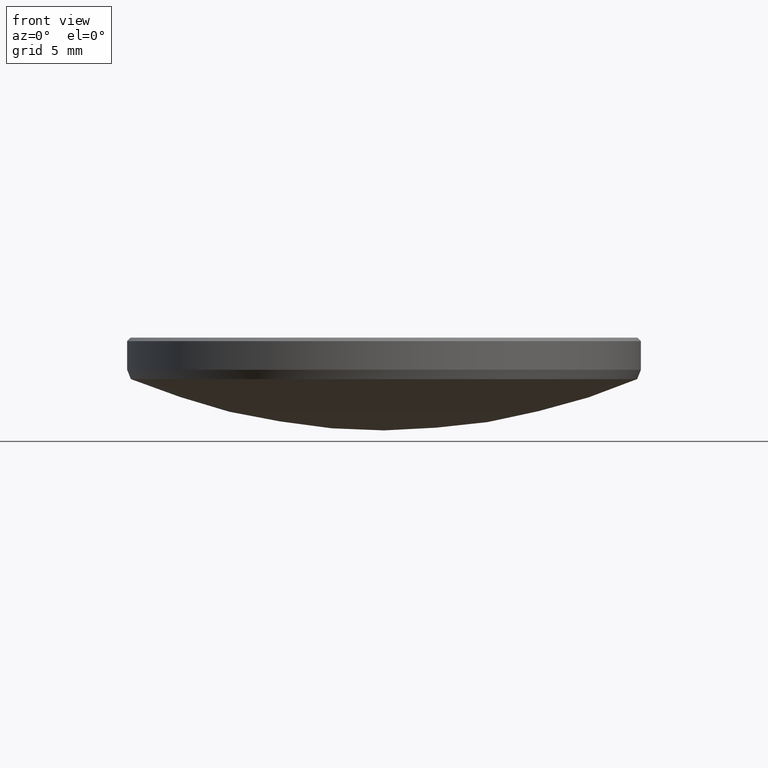
[diagram: clean part render]
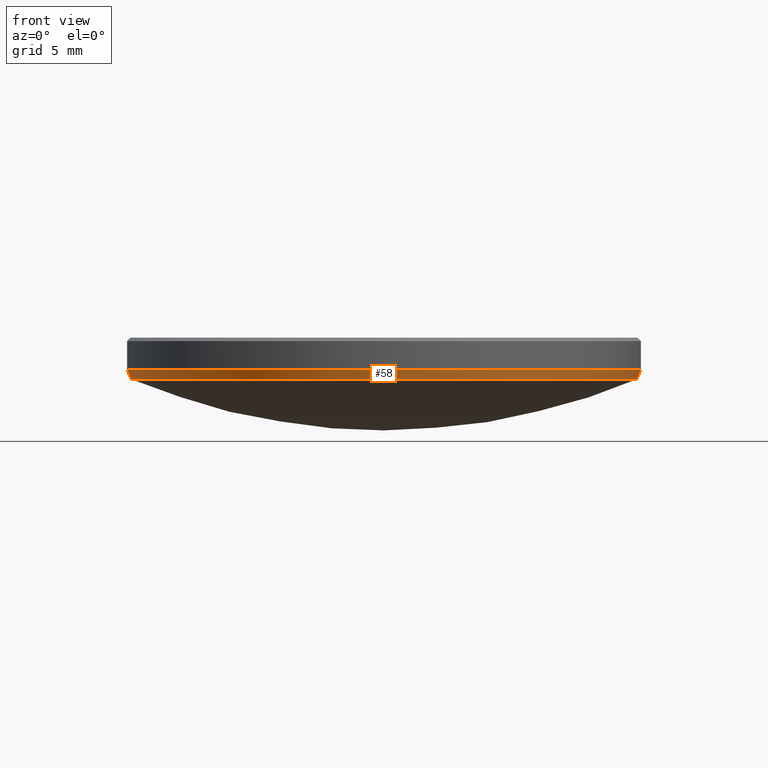
[diagram: same view with one face highlighted and labeled with its STEP entity id]
A machine part, front view. The second image highlights one B-rep face of the part: STEP entity #58.
In plain terms, the highlighted conical surface has half-angle 21.725 deg.
Its self-contained STEP definition (entity closure, byte-faithful):
#5 = EDGE_CURVE ( 'NONE', #200, #192, #256, .T. ) ;
#22 = CONICAL_SURFACE ( 'NONE', #132, 12.69999999999999929, 0.3791711273704264085 ) ;
#27 = ORIENTED_EDGE ( 'NONE', *, *, #207, .F. ) ;
#39 = CARTESIAN_POINT ( 'NONE',  ( 0.000000000000000000, 0.000000000000000000, 4.382064373895533826 ) ) ;
#58 = ADVANCED_FACE ( 'NONE', ( #289 ), #22, .T. ) ;
#65 = LINE ( 'NONE', #160, #170 ) ;
#71 = CARTESIAN_POINT ( 'NONE',  ( 12.69999999999999929, 1.555301434917138433E-15, 4.382064373895533826 ) ) ;
#83 = CARTESIAN_POINT ( 'NONE',  ( 12.51660009051966860, 0.000000000000000000, 3.921783238787050596 ) ) ;
#108 = AXIS2_PLACEMENT_3D ( 'NONE', #149, #109, #208 ) ;
#109 = DIRECTION ( 'NONE',  ( 0.000000000000000000, 0.000000000000000000, -1.000000000000000000 ) ) ;
#113 = DIRECTION ( 'NONE',  ( 0.000000000000000000, 0.000000000000000000, -1.000000000000000000 ) ) ;
#115 = DIRECTION ( 'NONE',  ( -1.000000000000000000, 0.000000000000000000, 0.000000000000000000 ) ) ;
#116 = AXIS2_PLACEMENT_3D ( 'NONE', #180, #113, #135 ) ;
#126 = VERTEX_POINT ( 'NONE', #83 ) ;
#132 = AXIS2_PLACEMENT_3D ( 'NONE', #39, #316, #133 ) ;
#133 = DIRECTION ( 'NONE',  ( 1.000000000000000000, 0.000000000000000000, 0.000000000000000000 ) ) ;
#135 = DIRECTION ( 'NONE',  ( 1.000000000000000000, 0.000000000000000000, 0.000000000000000000 ) ) ;
#138 = CARTESIAN_POINT ( 'NONE',  ( 0.000000000000000000, 0.000000000000000000, 4.382064373895533826 ) ) ;
#139 = DIRECTION ( 'NONE',  ( -0.3701505973859326448, 4.533037442911630369E-17, 0.9289717623560131976 ) ) ;
#144 = VERTEX_POINT ( 'NONE', #71 ) ;
#149 = CARTESIAN_POINT ( 'NONE',  ( 0.000000000000000000, 0.000000000000000000, 3.921783238787050596 ) ) ;
#154 = CARTESIAN_POINT ( 'NONE',  ( -12.69999999999999929, 0.000000000000000000, 4.382064373895533826 ) ) ;
#156 = CARTESIAN_POINT ( 'NONE',  ( -12.51660009051966860, 1.544071429311688688E-15, 3.921783238787050596 ) ) ;
#160 = CARTESIAN_POINT ( 'NONE',  ( 12.69999999999999929, 0.000000000000000000, 4.382064373895533826 ) ) ;
#162 = DIRECTION ( 'NONE',  ( 0.3701505973859326448, 0.000000000000000000, 0.9289717623560131976 ) ) ;
#164 = EDGE_CURVE ( 'NONE', #126, #200, #268, .T. ) ;
#165 = ORIENTED_EDGE ( 'NONE', *, *, #258, .T. ) ;
#170 = VECTOR ( 'NONE', #162, 1000.000000000000114 ) ;
#180 = CARTESIAN_POINT ( 'NONE',  ( 0.000000000000000000, 0.000000000000000000, 3.921783238787050596 ) ) ;
#188 = DIRECTION ( 'NONE',  ( -0.000000000000000000, -0.000000000000000000, 1.000000000000000000 ) ) ;
#192 = VERTEX_POINT ( 'NONE', #156 ) ;
#193 = VERTEX_POINT ( 'NONE', #154 ) ;
#196 = ORIENTED_EDGE ( 'NONE', *, *, #5, .F. ) ;
#199 = AXIS2_PLACEMENT_3D ( 'NONE', #138, #188, #115 ) ;
#200 = VERTEX_POINT ( 'NONE', #242 ) ;
#207 = EDGE_CURVE ( 'NONE', #193, #144, #230, .T. ) ;
#208 = DIRECTION ( 'NONE',  ( 1.000000000000000000, 0.000000000000000000, 0.000000000000000000 ) ) ;
#227 = EDGE_LOOP ( 'NONE', ( #254, #196, #250, #165, #27 ) ) ;
#230 = CIRCLE ( 'NONE', #199, 12.69999999999999929 ) ;
#242 = CARTESIAN_POINT ( 'NONE',  ( -1.532841423706237562E-15, -12.51660009051965972, 3.921783238787048820 ) ) ;
#248 = VECTOR ( 'NONE', #139, 1000.000000000000114 ) ;
#250 = ORIENTED_EDGE ( 'NONE', *, *, #164, .F. ) ;
#254 = ORIENTED_EDGE ( 'NONE', *, *, #263, .F. ) ;
#256 = CIRCLE ( 'NONE', #108, 12.51660009051966682 ) ;
#258 = EDGE_CURVE ( 'NONE', #126, #144, #65, .T. ) ;
#263 = EDGE_CURVE ( 'NONE', #192, #193, #320, .T. ) ;
#268 = CIRCLE ( 'NONE', #116, 12.51660009051966682 ) ;
#289 = FACE_OUTER_BOUND ( 'NONE', #227, .T. ) ;
#297 = CARTESIAN_POINT ( 'NONE',  ( -12.69999999999999929, 1.555301434917138433E-15, 4.382064373895533826 ) ) ;
#316 = DIRECTION ( 'NONE',  ( -0.000000000000000000, -0.000000000000000000, 1.000000000000000000 ) ) ;
#320 = LINE ( 'NONE', #297, #248 ) ;